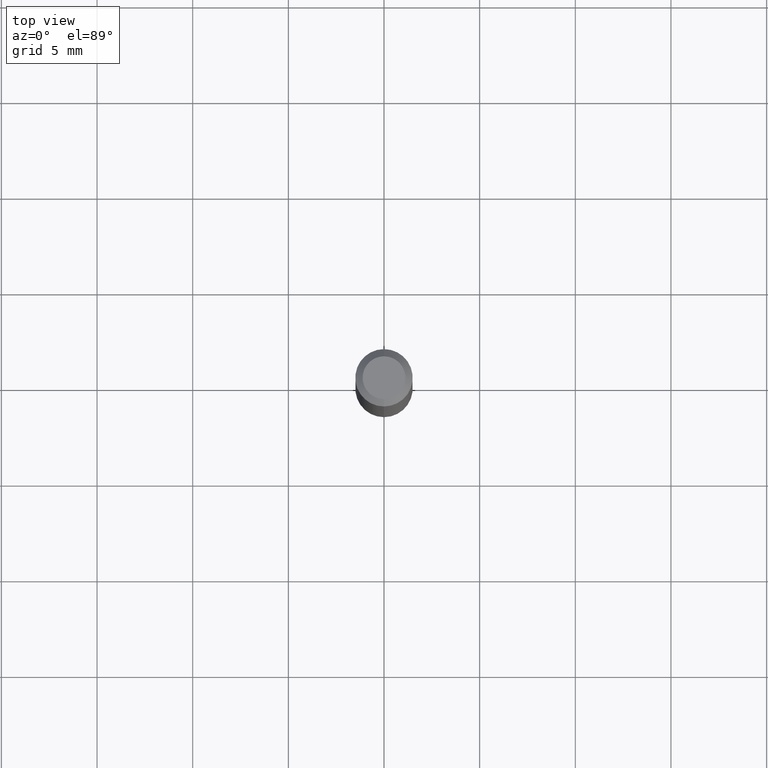
[diagram: clean part render]
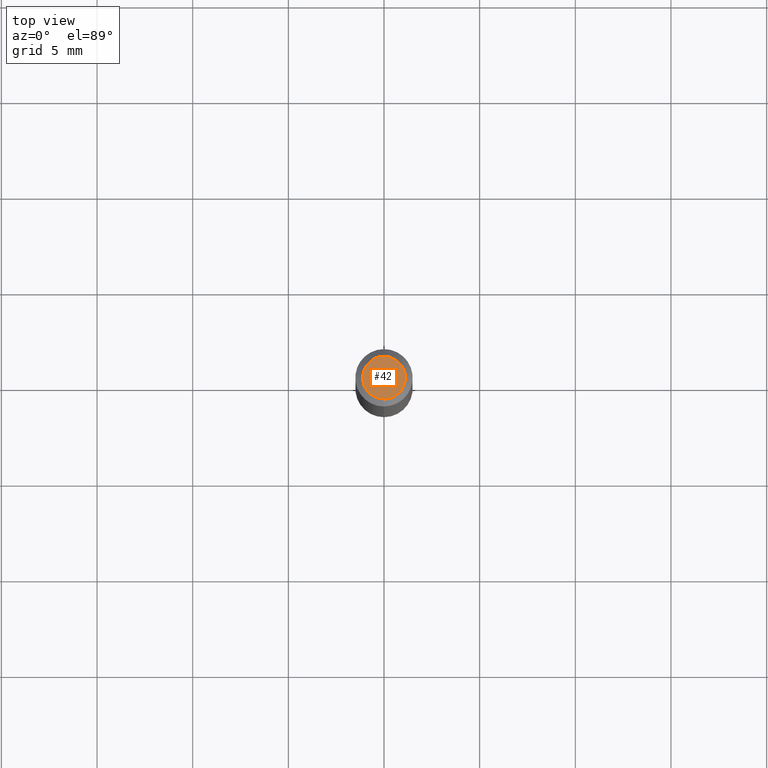
[diagram: same view with one face highlighted and labeled with its STEP entity id]
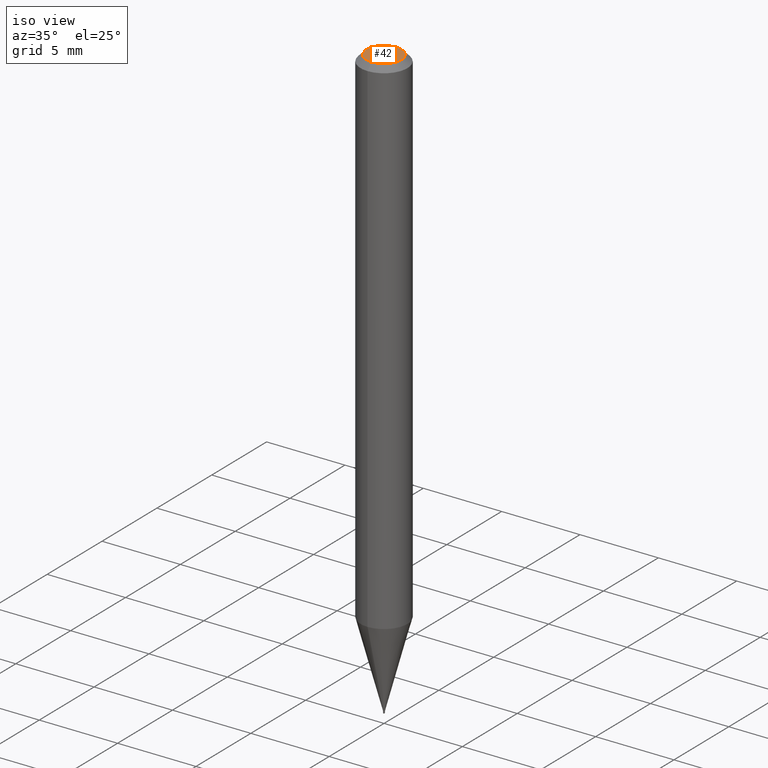
[diagram: same view with one face highlighted and labeled with its STEP entity id]
A machine part, top view. The second image highlights one B-rep face of the part: STEP entity #42.
A second angle (iso view) of the same face is appended — the face is thin or edge-on in the first view.
In plain terms, the highlighted planar face has unit normal (0, -0, -1).
Its self-contained STEP definition (entity closure, byte-faithful):
#17 = DIRECTION ( 'NONE',  ( -2.446328802231448422E-29, 3.490249775556891925E-15, 1.000000000000000000 ) ) ;
#22 = DIRECTION ( 'NONE',  ( -2.446328802231448422E-29, 3.490249775556891925E-15, 1.000000000000000000 ) ) ;
#42 = ADVANCED_FACE ( 'NONE', ( #239 ), #44, .F. ) ;
#44 = PLANE ( 'NONE',  #58 ) ;
#58 = AXIS2_PLACEMENT_3D ( 'NONE', #316, #431, #128 ) ;
#112 = ORIENTED_EDGE ( 'NONE', *, *, #135, .T. ) ;
#128 = DIRECTION ( 'NONE',  ( 6.982962677686265922E-15, 1.000000000000000000, -3.490249775556892319E-15 ) ) ;
#135 = EDGE_CURVE ( 'NONE', #177, #500, #472, .T. ) ;
#156 = CARTESIAN_POINT ( 'NONE',  ( -3.536586717851222218E-16, -0.04404999999999999888, 7.318909490857033312E-17 ) ) ;
#177 = VERTEX_POINT ( 'NONE', #351 ) ;
#196 = AXIS2_PLACEMENT_3D ( 'NONE', #297, #22, #411 ) ;
#239 = FACE_OUTER_BOUND ( 'NONE', #460, .T. ) ;
#289 = CARTESIAN_POINT ( 'NONE',  ( 1.970674603723332125E-45, -2.811619839110361524E-31, -8.055640770471075086E-17 ) ) ;
#297 = CARTESIAN_POINT ( 'NONE',  ( 1.970674603723332125E-45, -2.811619839110361524E-31, -8.055640770471075086E-17 ) ) ;
#316 = CARTESIAN_POINT ( 'NONE',  ( 3.075995059520799729E-16, 0.04404999999999999888, -1.940237064656364779E-16 ) ) ;
#348 = ORIENTED_EDGE ( 'NONE', *, *, #410, .T. ) ;
#351 = CARTESIAN_POINT ( 'NONE',  ( 3.599717260347271507E-16, 0.04404999999999999888, -2.343019103179918348E-16 ) ) ;
#357 = AXIS2_PLACEMENT_3D ( 'NONE', #289, #17, #444 ) ;
#410 = EDGE_CURVE ( 'NONE', #500, #177, #414, .T. ) ;
#411 = DIRECTION ( 'NONE',  ( -6.982962677686265133E-15, -1.000000000000000000, 3.490249775556891530E-15 ) ) ;
#414 = CIRCLE ( 'NONE', #196, 0.04404999999999999888 ) ;
#431 = DIRECTION ( 'NONE',  ( 2.446328802231447861E-29, -3.490249775556892319E-15, -1.000000000000000000 ) ) ;
#444 = DIRECTION ( 'NONE',  ( -6.982962677686265133E-15, -1.000000000000000000, 3.490249775556891530E-15 ) ) ;
#460 = EDGE_LOOP ( 'NONE', ( #112, #348 ) ) ;
#472 = CIRCLE ( 'NONE', #357, 0.04404999999999999888 ) ;
#500 = VERTEX_POINT ( 'NONE', #156 ) ;